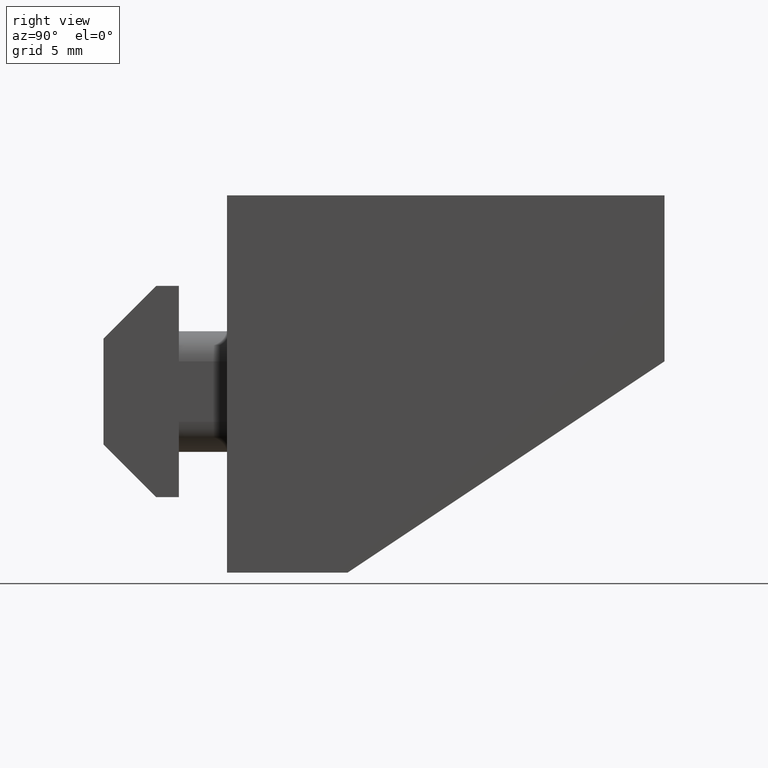
[diagram: clean part render]
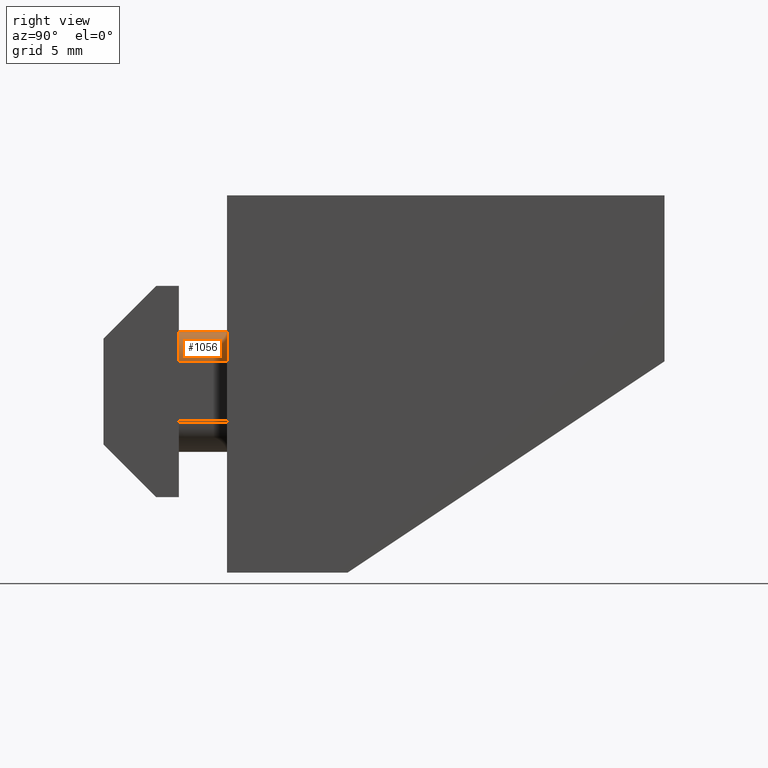
[diagram: same view with one face highlighted and labeled with its STEP entity id]
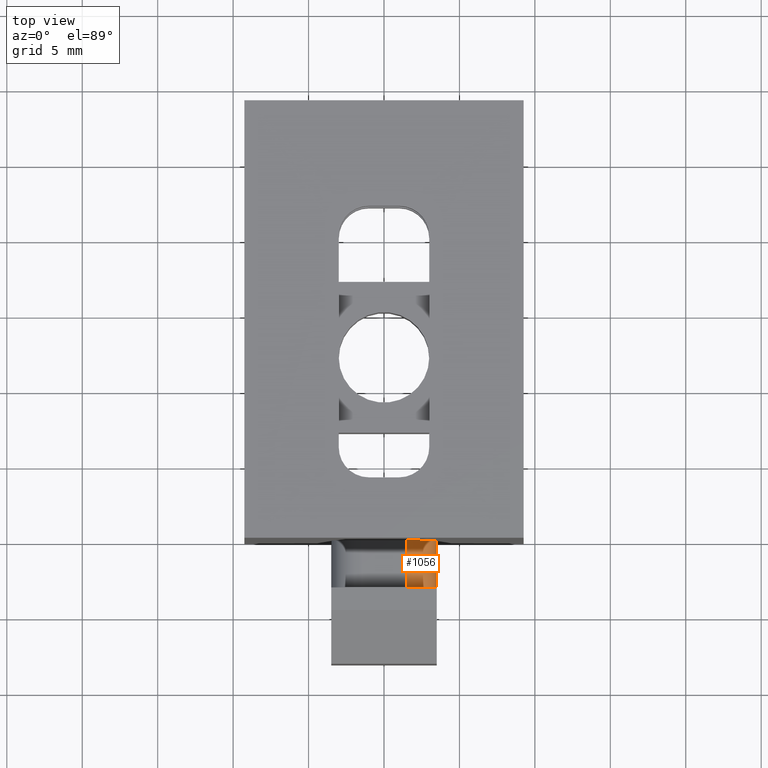
[diagram: same view with one face highlighted and labeled with its STEP entity id]
A machine part, right view. The second image highlights one B-rep face of the part: STEP entity #1056.
A second angle (top view) of the same face is appended — the face is thin or edge-on in the first view.
In plain terms, the highlighted cylindrical surface (edge-blend (fillet) strip) has radius 2 mm, axis along (0, 1, 0).
Its self-contained STEP definition (entity closure, byte-faithful):
#125=LINE('',#1707,#245);
#126=LINE('',#1710,#246);
#245=VECTOR('',#1403,3.18627625152038);
#246=VECTOR('',#1406,3.18627625152038);
#362=FACE_OUTER_BOUND('',#425,.T.);
#425=EDGE_LOOP('',(#945,#946,#947,#948));
#455=CIRCLE('',#1137,2.);
#456=CIRCLE('',#1138,2.);
#549=VERTEX_POINT('',#1703);
#550=VERTEX_POINT('',#1704);
#551=VERTEX_POINT('',#1706);
#552=VERTEX_POINT('',#1708);
#689=EDGE_CURVE('',#549,#550,#455,.T.);
#690=EDGE_CURVE('',#550,#551,#125,.T.);
#691=EDGE_CURVE('',#552,#551,#456,.T.);
#692=EDGE_CURVE('',#549,#552,#126,.T.);
#945=ORIENTED_EDGE('',*,*,#689,.T.);
#946=ORIENTED_EDGE('',*,*,#690,.T.);
#947=ORIENTED_EDGE('',*,*,#691,.F.);
#948=ORIENTED_EDGE('',*,*,#692,.F.);
#1006=CYLINDRICAL_SURFACE('',#1136,2.);
#1056=ADVANCED_FACE('',(#362),#1006,.T.);
#1136=AXIS2_PLACEMENT_3D('',#1702,#1399,#1400);
#1137=AXIS2_PLACEMENT_3D('',#1705,#1401,#1402);
#1138=AXIS2_PLACEMENT_3D('',#1709,#1404,#1405);
#1399=DIRECTION('center_axis',(0.,1.,0.));
#1400=DIRECTION('ref_axis',(0.,0.,1.));
#1401=DIRECTION('center_axis',(0.,1.,0.));
#1402=DIRECTION('ref_axis',(0.,0.,1.));
#1403=DIRECTION('',(0.,1.,0.));
#1404=DIRECTION('center_axis',(0.,1.,0.));
#1405=DIRECTION('ref_axis',(0.,0.,1.));
#1406=DIRECTION('',(0.,1.,0.));
#1702=CARTESIAN_POINT('Origin',(1.5,-3.18627625152038,-2.));
#1703=CARTESIAN_POINT('',(1.5,-3.18627625152038,0.));
#1704=CARTESIAN_POINT('',(3.5,-3.18627625152038,-2.));
#1705=CARTESIAN_POINT('Origin',(1.5,-3.18627625152038,-2.));
#1706=CARTESIAN_POINT('',(3.5,0.,-2.));
#1707=CARTESIAN_POINT('',(3.5,-3.18627625152038,-2.));
#1708=CARTESIAN_POINT('',(1.5,0.,0.));
#1709=CARTESIAN_POINT('Origin',(1.5,0.,-2.));
#1710=CARTESIAN_POINT('',(1.5,-3.18627625152038,0.));